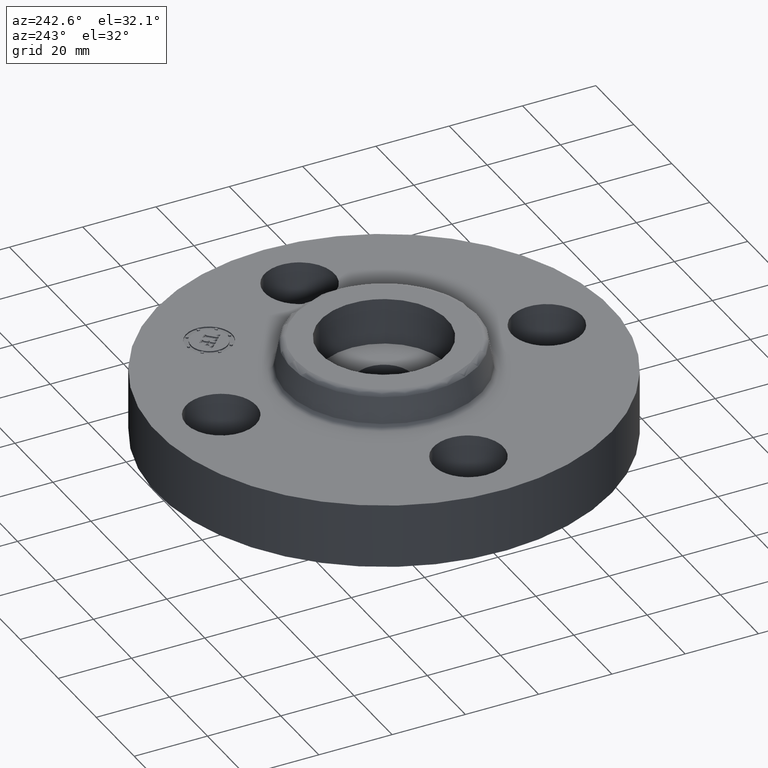
[diagram: clean part render]
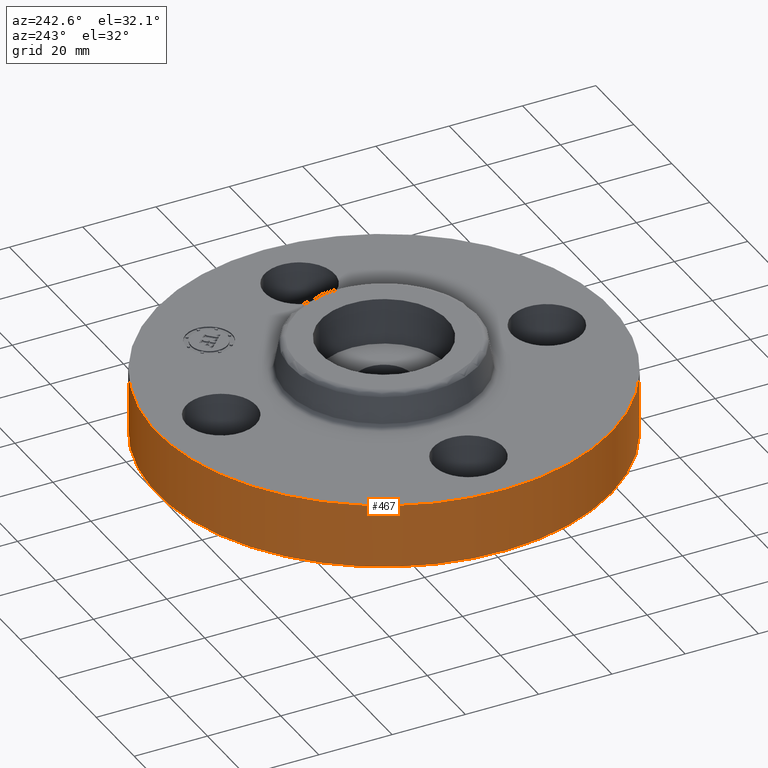
[diagram: same view with one face highlighted and labeled with its STEP entity id]
A machine part, auxiliary view. The second image highlights one B-rep face of the part: STEP entity #467.
In plain terms, the highlighted cylindrical surface (partial cylindrical patch) has radius 61.976 mm, axis along (0, 0, -1).
Its self-contained STEP definition (entity closure, byte-faithful):
#275=AXIS2_PLACEMENT_3D('Circle Axis2P3D',#273,#274,$) ;
#440=AXIS2_PLACEMENT_3D('Cylinder Axis2P3D',#437,#438,#439) ;
#451=AXIS2_PLACEMENT_3D('Circle Axis2P3D',#449,#450,$) ;
#273=CARTESIAN_POINT('Axis2P3D Location',(-8.39223703654E-016,-9.44270033993E-012,0.)) ;
#277=CARTESIAN_POINT('Vertex',(-1.16979831419,-2.14130145103,0.)) ;
#279=CARTESIAN_POINT('Vertex',(1.16979831419,2.14130145101,0.)) ;
#437=CARTESIAN_POINT('Axis2P3D Location',(0.,0.,0.530000000002)) ;
#442=CARTESIAN_POINT('Line Origine',(-1.1697983142,-2.14130145102,0.345000000001)) ;
#446=CARTESIAN_POINT('Vertex',(-1.1697983142,-2.14130145102,0.689999999975)) ;
#449=CARTESIAN_POINT('Axis2P3D Location',(0.,0.,0.689999999975)) ;
#453=CARTESIAN_POINT('Vertex',(1.1697983142,2.14130145102,0.689999999975)) ;
#456=CARTESIAN_POINT('Line Origine',(1.1697983142,2.14130145102,0.345000000001)) ;
#274=DIRECTION('Axis2P3D Direction',(0.,0.,-0.0393700787402)) ;
#438=DIRECTION('Axis2P3D Direction',(0.,0.,-0.0393700787402)) ;
#439=DIRECTION('Axis2P3D XDirection',(-0.0188750212049,-0.0345504945626,0.)) ;
#443=DIRECTION('Vector Direction',(0.,0.,-0.0393700787402)) ;
#450=DIRECTION('Axis2P3D Direction',(0.,0.,-0.0393700787402)) ;
#457=DIRECTION('Vector Direction',(0.,0.,-0.0393700787402)) ;
#444=VECTOR('Line Direction',#443,0.0393700787402) ;
#458=VECTOR('Line Direction',#457,0.0393700787402) ;
#462=ORIENTED_EDGE('',*,*,#281,.F.) ;
#463=ORIENTED_EDGE('',*,*,#448,.T.) ;
#464=ORIENTED_EDGE('',*,*,#455,.T.) ;
#465=ORIENTED_EDGE('',*,*,#460,.F.) ;
#467=ADVANCED_FACE('PartBody',(#466),#441,.T.) ;
#276=CIRCLE('generated circle',#275,2.44) ;
#452=CIRCLE('generated circle',#451,2.44000000001) ;
#441=CYLINDRICAL_SURFACE('generated cylinder',#440,2.44000000001) ;
#281=EDGE_CURVE('',#278,#280,#276,.T.) ;
#448=EDGE_CURVE('',#278,#447,#445,.F.) ;
#455=EDGE_CURVE('',#447,#454,#452,.T.) ;
#460=EDGE_CURVE('',#280,#454,#459,.F.) ;
#461=EDGE_LOOP('',(#462,#463,#464,#465)) ;
#466=FACE_OUTER_BOUND('',#461,.T.) ;
#445=LINE('Line',#442,#444) ;
#459=LINE('Line',#456,#458) ;
#278=VERTEX_POINT('',#277) ;
#280=VERTEX_POINT('',#279) ;
#447=VERTEX_POINT('',#446) ;
#454=VERTEX_POINT('',#453) ;